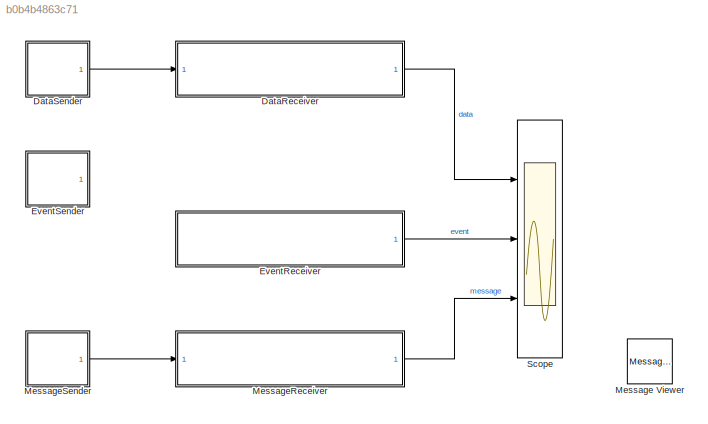
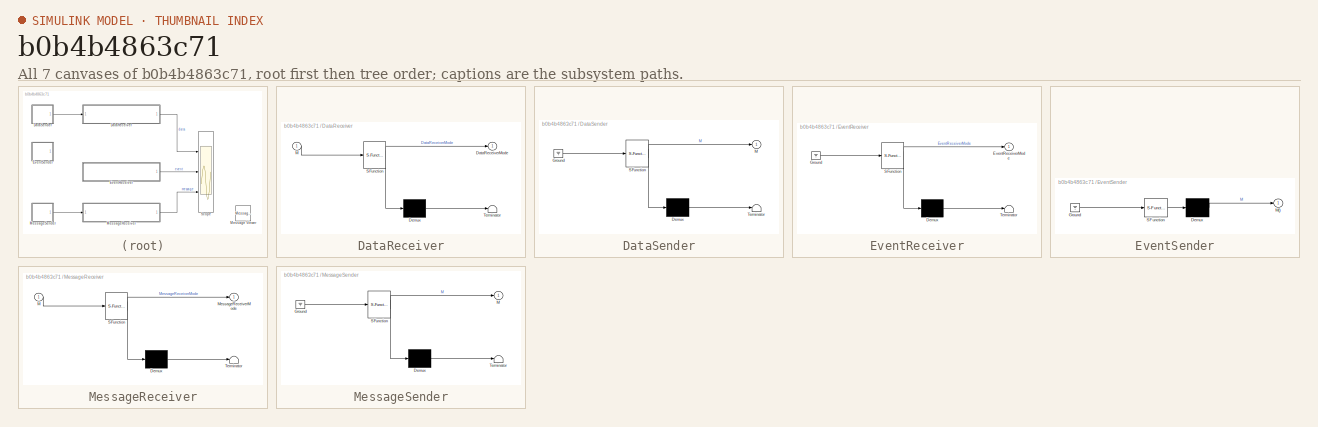
[diagram: thumbnail index - all 7 canvases of the model, root first then tree order]
MODEL slx_b0b4b4863c71
KIND model
CONFIG AbsTol = auto
CONFIG EnableMultiTasking = on
CONFIG FixedStep = 1
CONFIG MaxStep = auto
CONFIG MinStep = auto
CONFIG RelTol = 1e-3
CONFIG SampleTimeConstraint = Unconstrained
CONFIG Solver = FixedStepDiscrete
CONFIG SolverName = FixedStepDiscrete
CONFIG StartTime = 0.0
CONFIG StopTime = 10.0
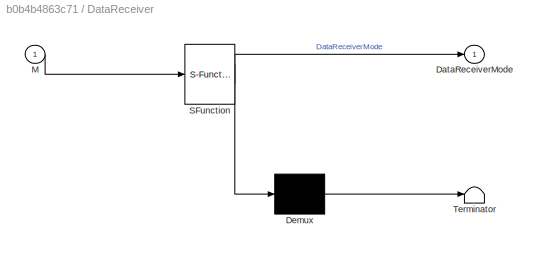
BLOCK [SubSystem] DataReceiver
  ErrorFcn = Stateflow.Translate.translate
  PermitHierarchicalResolution = ExplicitOnly
  Ports = [1, 1]
  RequestExecContextInheritance = off
  SFBlockType = Chart
  TreatAsAtomicUnit = on
BLOCK [Demux] DataReceiver/ Demux 
  Outputs = 1
  Ports = [1, 1]
BLOCK [S-Function] DataReceiver/ SFunction 
  EnableBusSupport = on
  FunctionName = sf_sfun
  Parameters = 0
  PortCounts = [1 2]
  Ports = [1, 2]
  SFcnIsStateOwnerBlock = off
  SFunctionDeploymentMode = off
  Tag = Stateflow S-Function msgex1_data_vs_event_vs_msg 5
BLOCK [Terminator] DataReceiver/ Terminator 
BLOCK [Outport] DataReceiver/DataReceiverMode
  IconDisplay = Port number
BLOCK [Inport] DataReceiver/M
  IconDisplay = Port number
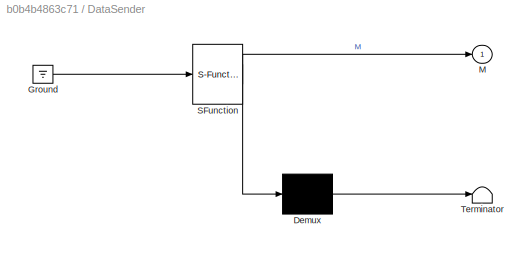
BLOCK [SubSystem] DataSender
  ErrorFcn = Stateflow.Translate.translate
  PermitHierarchicalResolution = ExplicitOnly
  Ports = [0, 1]
  RequestExecContextInheritance = off
  SFBlockType = Chart
  TreatAsAtomicUnit = on
BLOCK [Demux] DataSender/ Demux 
  Outputs = 1
  Ports = [1, 1]
BLOCK [Ground] DataSender/ Ground 
BLOCK [S-Function] DataSender/ SFunction 
  EnableBusSupport = on
  FunctionName = sf_sfun
  PortCounts = [1 2]
  Ports = [1, 2]
  SFcnIsStateOwnerBlock = off
  SFunctionDeploymentMode = off
  Tag = Stateflow S-Function msgex1_data_vs_event_vs_msg 6
BLOCK [Terminator] DataSender/ Terminator 
BLOCK [Outport] DataSender/M
  IconDisplay = Port number
BLOCK [SubSystem] EventReceiver
  ErrorFcn = Stateflow.Translate.translate
  PermitHierarchicalResolution = ExplicitOnly
  Ports = [0, 1]
  RequestExecContextInheritance = off
  SFBlockType = Chart
  TreatAsAtomicUnit = on
BLOCK [Demux] EventReceiver/ Demux 
  Outputs = 1
  Ports = [1, 1]
BLOCK [Ground] EventReceiver/ Ground 
BLOCK [S-Function] EventReceiver/ SFunction 
  EnableBusSupport = on
  FunctionName = sf_sfun
  PortCounts = [1 2]
  Ports = [1, 2]
  SFcnIsStateOwnerBlock = off
  SFunctionDeploymentMode = off
  Tag = Stateflow S-Function msgex1_data_vs_event_vs_msg 3
BLOCK [Terminator] EventReceiver/ Terminator 
BLOCK [Outport] EventReceiver/EventReceiverMode
  IconDisplay = Port number
BLOCK [SubSystem] EventSender
  ErrorFcn = Stateflow.Translate.translate
  PermitHierarchicalResolution = ExplicitOnly
  Ports = [0, 1]
  RequestExecContextInheritance = off
  SFBlockType = Chart
  TreatAsAtomicUnit = on
BLOCK [Demux] EventSender/ Demux 
  Outputs = 1
  Ports = [1, 1]
BLOCK [Ground] EventSender/ Ground 
BLOCK [S-Function] EventSender/ SFunction 
  EnableBusSupport = on
  FunctionName = sf_sfun
  PortCounts = [1 1]
  Ports = [1, 1]
  SFcnIsStateOwnerBlock = off
  SFunctionDeploymentMode = off
  Tag = Stateflow S-Function msgex1_data_vs_event_vs_msg 4
BLOCK [Outport] EventSender/M()
  IconDisplay = Port number
BLOCK [MessageViewer] Message Viewer
BLOCK [SubSystem] MessageReceiver
  ErrorFcn = Stateflow.Translate.translate
  PermitHierarchicalResolution = ExplicitOnly
  Ports = [1, 1]
  RequestExecContextInheritance = off
  SFBlockType = Chart
  TreatAsAtomicUnit = on
BLOCK [Demux] MessageReceiver/ Demux 
  Outputs = 1
  Ports = [1, 1]
BLOCK [S-Function] MessageReceiver/ SFunction 
  EnableBusSupport = on
  FunctionName = sf_sfun
  InputPortMessageModes = m
  PortCounts = [1 2]
  Ports = [1, 2]
  SFcnIsStateOwnerBlock = off
  SFunctionDeploymentMode = off
  Tag = Stateflow S-Function msgex1_data_vs_event_vs_msg 2
BLOCK [Terminator] MessageReceiver/ Terminator 
BLOCK [Inport] MessageReceiver/M
  IconDisplay = Port number
BLOCK [Outport] MessageReceiver/MessageReceiverMode
  IconDisplay = Port number
BLOCK [SubSystem] MessageSender
  ErrorFcn = Stateflow.Translate.translate
  PermitHierarchicalResolution = ExplicitOnly
  Ports = [0, 1]
  RequestExecContextInheritance = off
  SFBlockType = Chart
  TreatAsAtomicUnit = on
BLOCK [Demux] MessageSender/ Demux 
  Outputs = 1
  Ports = [1, 1]
BLOCK [Ground] MessageSender/ Ground 
BLOCK [S-Function] MessageSender/ SFunction 
  EnableBusSupport = on
  FunctionName = sf_sfun
  OutputPortMessageModes = n,m
  PortCounts = [1 2]
  Ports = [1, 2]
  SFcnIsStateOwnerBlock = off
  SFunctionDeploymentMode = off
  Tag = Stateflow S-Function msgex1_data_vs_event_vs_msg 1
BLOCK [Terminator] MessageSender/ Terminator 
BLOCK [Outport] MessageSender/M
  IconDisplay = Port number
BLOCK [Scope] Scope
  Floating = off
  NumInputPorts = 3
  Ports = [3]
  ScopeSpecificationString = Simulink.scopes.TimeScopeBlockCfg('CurrentConfiguration', extmgr.ConfigurationSet(extmgr.Configuration('Core','General UI',true,'FigureColor',[0.156862745098039 0.156862745098039 0.156862745098039]),extmgr.Configuration('Core','Source UI',true),extmgr.Configuration('Sources','WiredSimulink',true,'DataLoggingSaveFormat','StructureWithTime','DataLoggingLimitDataPoints',true,'DataLoggingDecimation','...<+5144ch>
LINE DataReceiver:1 -> Scope:1
LINE DataSender:1 -> DataReceiver:1
LINE EventReceiver:1 -> Scope:2
LINE MessageReceiver:1 -> Scope:3
LINE MessageSender:1 -> MessageReceiver:1
CHART MessageSender states=1 transitions=1
  STATE_LABEL 'A\nen: \nsend(M);'
CHART MessageReceiver states=4 transitions=4
  STATE_LABEL 'A0\n'
  STATE_LABEL 'A1\n'
  STATE_LABEL 'A2\n'
  STATE_LABEL 'A3\n'
CHART EventReceiver states=4 transitions=4
  STATE_LABEL 'A0\n'
  STATE_LABEL 'A1\nen: send(M, A2);\n'
  STATE_LABEL 'A2\nen: send(M,A3);\n'
  STATE_LABEL 'A3\n'
CHART EventSender states=1 transitions=1
  STATE_LABEL 'A\nen: send(M)'
CHART DataReceiver states=8 transitions=33
  STATE_LABEL 'A0\n'
  STATE_LABEL 'A1\nen: A = 1;\ndu: B = 1;\nex: C = 1;\n'
  STATE_LABEL 'CorrectFalseReversePending'
  STATE_LABEL '[true]'
  STATE_LABEL '{D = 1;\n}'
  STATE_LABEL 'CorrectTrueReversePending'
  STATE_LABEL '[true]'
  STATE_LABEL '{E = 2;}'
  STATE_LABEL 'Finished1\nE = 1;\n'
  STATE_LABEL '[true]'
  STATE_LABEL '[true]'
  STATE_LABEL 'CorrectFalseReversePending'
  STATE_LABEL '[true]'
  STATE_LABEL '{D = 1;\n}'
  STATE_LABEL 'CorrectTrueReversePending'
  STATE_LABEL '[true]'
  STATE_LABEL '{E = 2;}'
  STATE_LABEL 'Finished1\nE = 1;\n'
  STATE_LABEL 'Finished'
  STATE_LABEL 'A2\n'
  STATE_LABEL 'A3\n'
CHART DataSender states=1 transitions=1
  STATE_LABEL 'A\nen: M = 1;'
